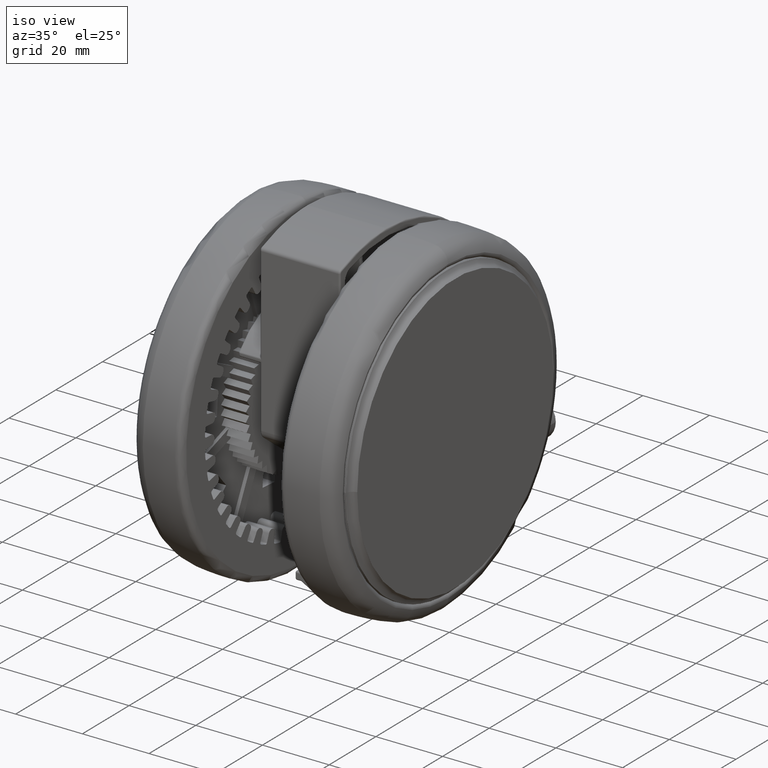
[diagram: clean part render]
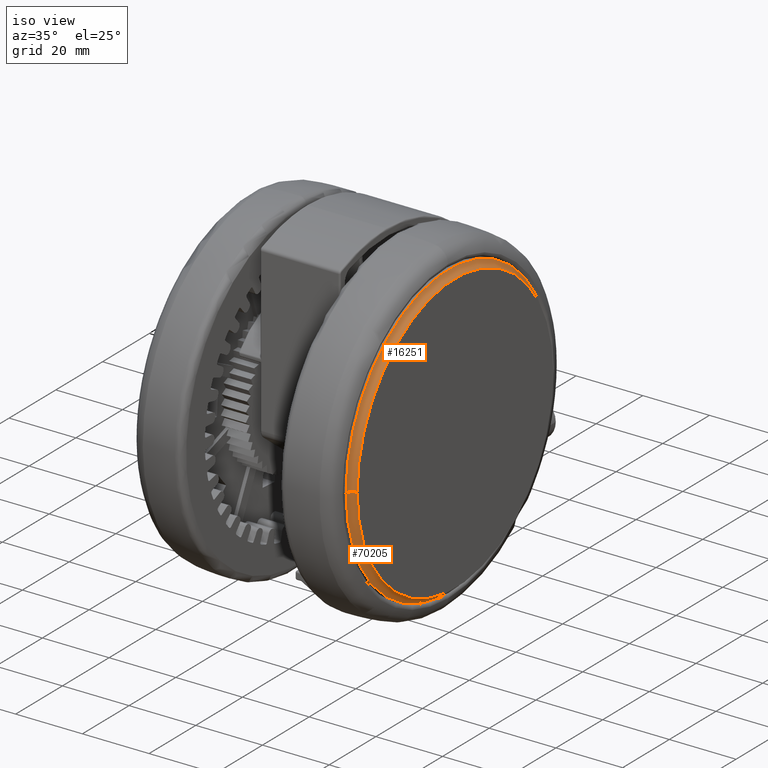
[diagram: same view with one multi-face feature highlighted, each face labeled with its STEP entity id]
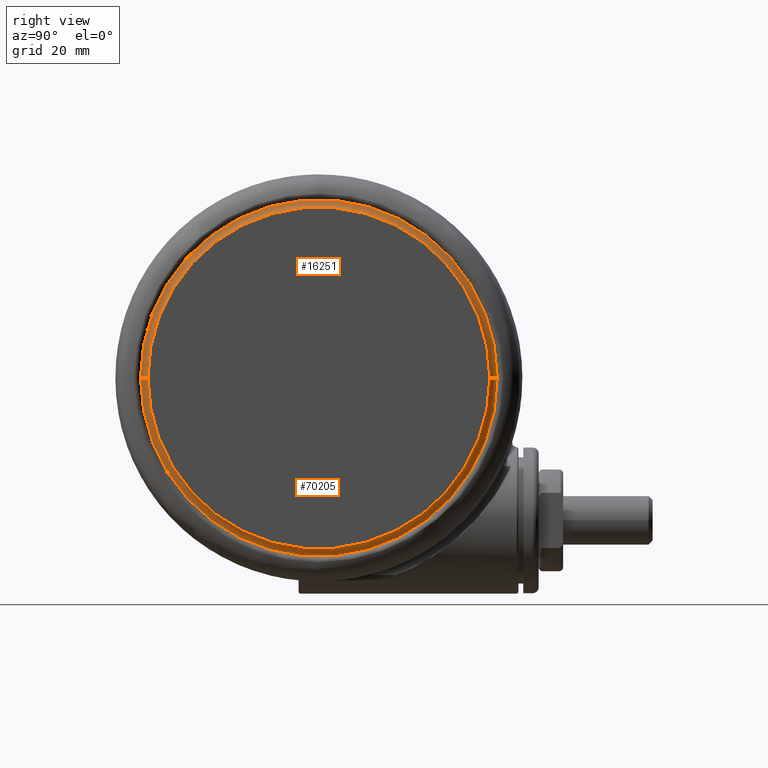
[diagram: same view with one multi-face feature highlighted, each face labeled with its STEP entity id]
A machine part, iso view. The highlighted faces form ONE feature: a constant-radius fillet chain: 2 tangent blend faces with common blend radius 2.0507 mm. The faces share edges in the B-rep.
A second angle (right view) of the same feature is appended — it is thin or edge-on in the first view.
Their STEP definitions:
[1] entity #16251 (Torus):
#245 = CARTESIAN_POINT ( 'NONE',  ( -44.04999999999999700, 5.394569150244090700E-015, -0.05476190476190339500 ) ) ;
#2929 = CARTESIAN_POINT ( 'NONE',  ( 0.0000000000000000000, 0.0000000000000000000, -0.05476190476190365100 ) ) ;
#3003 = ORIENTED_EDGE ( 'NONE', *, *, #76314, .T. ) ;
#3528 = DIRECTION ( 'NONE',  ( 0.0000000000000000000, -1.000000000000000000, 0.0000000000000000000 ) ) ;
#4897 = VERTEX_POINT ( 'NONE', #43592 ) ;
#5324 = EDGE_LOOP ( 'NONE', ( #66985, #60315, #3003, #73337 ) ) ;
#6229 = DIRECTION ( 'NONE',  ( -1.000000000000000000, 1.224646799147356900E-016, 0.0000000000000000000 ) ) ;
#8919 = DIRECTION ( 'NONE',  ( 1.000000000000000000, 0.0000000000000000000, 0.0000000000000000000 ) ) ;
#9476 = EDGE_CURVE ( 'NONE', #34477, #35159, #65375, .T. ) ;
#9525 = CIRCLE ( 'NONE', #13642, 43.81162395321010200 ) ;
#13642 = AXIS2_PLACEMENT_3D ( 'NONE', #61137, #25492, #67180 ) ;
#13660 = AXIS2_PLACEMENT_3D ( 'NONE', #245, #41889, #6229 ) ;
#16027 = AXIS2_PLACEMENT_3D ( 'NONE', #31808, #25807, #37807 ) ;
#16251 = ADVANCED_FACE ( 'NONE', ( #76987 ), #31306, .F. ) ;
#25492 = DIRECTION ( 'NONE',  ( 0.0000000000000000000, 0.0000000000000000000, 1.000000000000000000 ) ) ;
#25807 = DIRECTION ( 'NONE',  ( 0.0000000000000000000, 0.0000000000000000000, 1.000000000000000000 ) ) ;
#31306 = TOROIDAL_SURFACE ( 'NONE', #16027, 44.04999999999999700, 2.050731300344620100 ) ;
#31808 = CARTESIAN_POINT ( 'NONE',  ( 0.0000000000000000000, 0.0000000000000000000, -0.05476190476190339500 ) ) ;
#34477 = VERTEX_POINT ( 'NONE', #53510 ) ;
#35159 = VERTEX_POINT ( 'NONE', #38058 ) ;
#37807 = DIRECTION ( 'NONE',  ( 1.000000000000000000, 0.0000000000000000000, 0.0000000000000000000 ) ) ;
#38058 = CARTESIAN_POINT ( 'NONE',  ( -43.81162395316311400, 5.365376503968872300E-015, -2.091591727423864900 ) ) ;
#39157 = CARTESIAN_POINT ( 'NONE',  ( 44.04999999999999700, 0.0000000000000000000, -0.05476190476190339500 ) ) ;
#39815 = AXIS2_PLACEMENT_3D ( 'NONE', #2929, #44548, #8919 ) ;
#41889 = DIRECTION ( 'NONE',  ( 1.224646799147353200E-016, 1.000000000000000000, -0.0000000000000000000 ) ) ;
#42223 = CIRCLE ( 'NONE', #39815, 41.99926869965538100 ) ;
#43592 = CARTESIAN_POINT ( 'NONE',  ( 43.81162395316311400, 0.0000000000000000000, -2.091591727423864900 ) ) ;
#44548 = DIRECTION ( 'NONE',  ( 0.0000000000000000000, 0.0000000000000000000, 1.000000000000000000 ) ) ;
#45137 = DIRECTION ( 'NONE',  ( 0.0000000000000000000, 0.0000000000000000000, -1.000000000000000000 ) ) ;
#51280 = CARTESIAN_POINT ( 'NONE',  ( 41.99926869965538100, 0.0000000000000000000, -0.05476190476190365100 ) ) ;
#52084 = EDGE_CURVE ( 'NONE', #57600, #34477, #42223, .T. ) ;
#53325 = EDGE_CURVE ( 'NONE', #57600, #4897, #71938, .T. ) ;
#53510 = CARTESIAN_POINT ( 'NONE',  ( -41.99926869965538100, 5.143426997956257600E-015, -0.05476190476190365100 ) ) ;
#54085 = AXIS2_PLACEMENT_3D ( 'NONE', #39157, #3528, #45137 ) ;
#57600 = VERTEX_POINT ( 'NONE', #51280 ) ;
#60315 = ORIENTED_EDGE ( 'NONE', *, *, #53325, .T. ) ;
#61137 = CARTESIAN_POINT ( 'NONE',  ( 0.0000000000000000000, 0.0000000000000000000, -2.091591727423864900 ) ) ;
#65375 = CIRCLE ( 'NONE', #13660, 2.050731300344617500 ) ;
#66985 = ORIENTED_EDGE ( 'NONE', *, *, #52084, .F. ) ;
#67180 = DIRECTION ( 'NONE',  ( 1.000000000000000000, 0.0000000000000000000, 0.0000000000000000000 ) ) ;
#71938 = CIRCLE ( 'NONE', #54085, 2.050731300344620100 ) ;
#73337 = ORIENTED_EDGE ( 'NONE', *, *, #9476, .F. ) ;
#76314 = EDGE_CURVE ( 'NONE', #4897, #35159, #9525, .T. ) ;
#76987 = FACE_OUTER_BOUND ( 'NONE', #5324, .T. ) ;
[2] entity #70205 (Torus):
#245 = CARTESIAN_POINT ( 'NONE',  ( -44.04999999999999700, 5.394569150244090700E-015, -0.05476190476190339500 ) ) ;
#3528 = DIRECTION ( 'NONE',  ( 0.0000000000000000000, -1.000000000000000000, 0.0000000000000000000 ) ) ;
#4897 = VERTEX_POINT ( 'NONE', #43592 ) ;
#6229 = DIRECTION ( 'NONE',  ( -1.000000000000000000, 1.224646799147356900E-016, 0.0000000000000000000 ) ) ;
#6584 = ORIENTED_EDGE ( 'NONE', *, *, #61497, .T. ) ;
#9476 = EDGE_CURVE ( 'NONE', #34477, #35159, #65375, .T. ) ;
#13540 = AXIS2_PLACEMENT_3D ( 'NONE', #15808, #57428, #21765 ) ;
#13660 = AXIS2_PLACEMENT_3D ( 'NONE', #245, #41889, #6229 ) ;
#15808 = CARTESIAN_POINT ( 'NONE',  ( 0.0000000000000000000, 0.0000000000000000000, -0.05476190476190365100 ) ) ;
#19818 = ORIENTED_EDGE ( 'NONE', *, *, #9476, .T. ) ;
#21765 = DIRECTION ( 'NONE',  ( 1.000000000000000000, 0.0000000000000000000, 0.0000000000000000000 ) ) ;
#23434 = ORIENTED_EDGE ( 'NONE', *, *, #53325, .F. ) ;
#23888 = EDGE_CURVE ( 'NONE', #34477, #57600, #32808, .T. ) ;
#24318 = DIRECTION ( 'NONE',  ( 0.0000000000000000000, 0.0000000000000000000, 1.000000000000000000 ) ) ;
#25093 = DIRECTION ( 'NONE',  ( 0.0000000000000000000, 0.0000000000000000000, 1.000000000000000000 ) ) ;
#30843 = CARTESIAN_POINT ( 'NONE',  ( 0.0000000000000000000, 0.0000000000000000000, -0.05476190476190339500 ) ) ;
#32808 = CIRCLE ( 'NONE', #13540, 41.99926869965538100 ) ;
#34477 = VERTEX_POINT ( 'NONE', #53510 ) ;
#35159 = VERTEX_POINT ( 'NONE', #38058 ) ;
#37105 = DIRECTION ( 'NONE',  ( 1.000000000000000000, 0.0000000000000000000, 0.0000000000000000000 ) ) ;
#37887 = FACE_OUTER_BOUND ( 'NONE', #40185, .T. ) ;
#38058 = CARTESIAN_POINT ( 'NONE',  ( -43.81162395316311400, 5.365376503968872300E-015, -2.091591727423864900 ) ) ;
#39157 = CARTESIAN_POINT ( 'NONE',  ( 44.04999999999999700, 0.0000000000000000000, -0.05476190476190339500 ) ) ;
#40185 = EDGE_LOOP ( 'NONE', ( #46521, #19818, #6584, #23434 ) ) ;
#41889 = DIRECTION ( 'NONE',  ( 1.224646799147353200E-016, 1.000000000000000000, -0.0000000000000000000 ) ) ;
#43592 = CARTESIAN_POINT ( 'NONE',  ( 43.81162395316311400, 0.0000000000000000000, -2.091591727423864900 ) ) ;
#45137 = DIRECTION ( 'NONE',  ( 0.0000000000000000000, 0.0000000000000000000, -1.000000000000000000 ) ) ;
#46521 = ORIENTED_EDGE ( 'NONE', *, *, #23888, .F. ) ;
#51280 = CARTESIAN_POINT ( 'NONE',  ( 41.99926869965538100, 0.0000000000000000000, -0.05476190476190365100 ) ) ;
#52692 = CIRCLE ( 'NONE', #56578, 43.81162395321010200 ) ;
#53325 = EDGE_CURVE ( 'NONE', #57600, #4897, #71938, .T. ) ;
#53510 = CARTESIAN_POINT ( 'NONE',  ( -41.99926869965538100, 5.143426997956257600E-015, -0.05476190476190365100 ) ) ;
#54085 = AXIS2_PLACEMENT_3D ( 'NONE', #39157, #3528, #45137 ) ;
#55079 = AXIS2_PLACEMENT_3D ( 'NONE', #30843, #25093, #37105 ) ;
#56578 = AXIS2_PLACEMENT_3D ( 'NONE', #59966, #24318, #66005 ) ;
#57428 = DIRECTION ( 'NONE',  ( 0.0000000000000000000, 0.0000000000000000000, 1.000000000000000000 ) ) ;
#57435 = TOROIDAL_SURFACE ( 'NONE', #55079, 44.04999999999999700, 2.050731300344620100 ) ;
#57600 = VERTEX_POINT ( 'NONE', #51280 ) ;
#59966 = CARTESIAN_POINT ( 'NONE',  ( 0.0000000000000000000, 0.0000000000000000000, -2.091591727423864900 ) ) ;
#61497 = EDGE_CURVE ( 'NONE', #35159, #4897, #52692, .T. ) ;
#65375 = CIRCLE ( 'NONE', #13660, 2.050731300344617500 ) ;
#66005 = DIRECTION ( 'NONE',  ( 1.000000000000000000, 0.0000000000000000000, 0.0000000000000000000 ) ) ;
#70205 = ADVANCED_FACE ( 'NONE', ( #37887 ), #57435, .F. ) ;
#71938 = CIRCLE ( 'NONE', #54085, 2.050731300344620100 ) ;